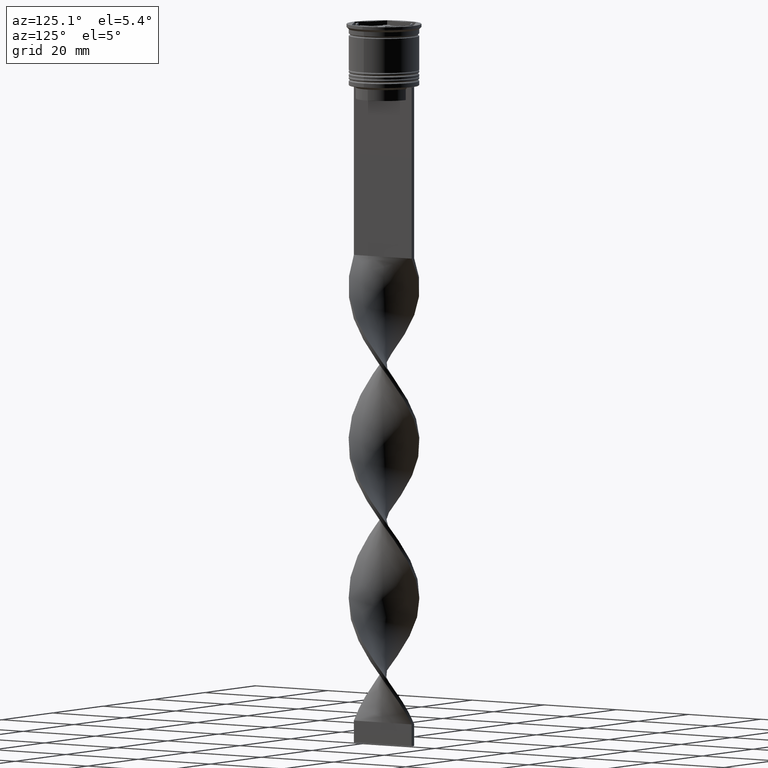
[diagram: clean part render]
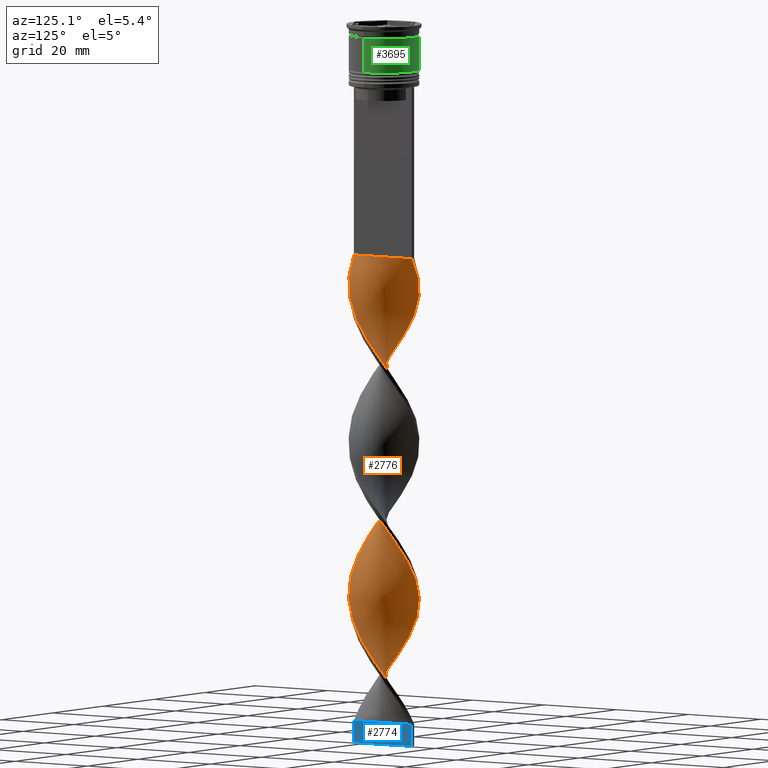
[diagram: same view with three faces highlighted in distinct colors, each labeled with its STEP entity id]
A machine part, auxiliary view with three faces highlighted in distinct colors.
Their STEP definitions:

[orange] entity #2776 — the highlighted face is a freeform B-spline surface patch.
#3 = CARTESIAN_POINT ( 'NONE',  ( 6.678203230275513214, 4.433012701892219631, -147.2222222222222285 ) ) ;
#8 = VECTOR ( 'NONE', #3688, 1000.000000000000000 ) ;
#16 = CARTESIAN_POINT ( 'NONE',  ( -0.5000000000000011102, -7.999999999999996447, -159.0000000000000000 ) ) ;
#20 = CARTESIAN_POINT ( 'NONE',  ( 8.008439394580017634, -0.3389667584570930092, -69.48888888888889426 ) ) ;
#25 = CARTESIAN_POINT ( 'NONE',  ( 2.797120415785104619, 7.511731982678710118, -83.62222222222222001 ) ) ;
#36 = CARTESIAN_POINT ( 'NONE',  ( -6.678203230275515878, -4.433012701892216079, -111.8888888888888999 ) ) ;
#52 = CARTESIAN_POINT ( 'NONE',  ( 5.610593300639729719, 5.724617263609562912, -78.91111111111111143 ) ) ;
#62 = CARTESIAN_POINT ( 'NONE',  ( 2.797120415785096625, -7.511731982678705677, -93.04444444444443718 ) ) ;
#72 = CARTESIAN_POINT ( 'NONE',  ( 2.797120415785104619, 7.511731982678710118, -83.62222222222222001 ) ) ;
#101 = CARTESIAN_POINT ( 'NONE',  ( 2.797120415785104619, 7.511731982678710118, -154.2888888888888914 ) ) ;
#104 = CARTESIAN_POINT ( 'NONE',  ( -7.178203230275506996, -3.566987298107776816, -76.55555555555555713 ) ) ;
#143 = CARTESIAN_POINT ( 'NONE',  ( -1.340833882125413545, -7.947447882367156602, -87.15555555555553724 ) ) ;
#152 = CARTESIAN_POINT ( 'NONE',  ( 7.178203230275512325, -3.566987298107783477, -135.4444444444444571 ) ) ;
#162 = CARTESIAN_POINT ( 'NONE',  ( 5.756150055891659179, 5.641498017056833625, -115.4222222222222456 ) ) ;
#168 = CARTESIAN_POINT ( 'NONE',  ( -3.710665873427702710, -7.104995339602902860, -83.62222222222222001 ) ) ;
#169 = CARTESIAN_POINT ( 'NONE',  ( 7.972812552651897811, -1.180687656695942112, -138.9777777777777885 ) ) ;
#178 = CARTESIAN_POINT ( 'NONE',  ( -2.963900771692543401, -7.495002038555964141, -155.4666666666666686 ) ) ;
#183 = CARTESIAN_POINT ( 'NONE',  ( 7.972812552651892481, 1.180687656695933230, -108.3555555555555543 ) ) ;
#192 = CARTESIAN_POINT ( 'NONE',  ( -4.457430975162862019, -6.714988640649840690, -153.1111111111110858 ) ) ;
#206 = CARTESIAN_POINT ( 'NONE',  ( 2.152367326908981138, 7.721224960461560372, -121.3111111111111171 ) ) ;
#215 = CARTESIAN_POINT ( 'NONE',  ( -2.152367326908979805, -7.721224960461560372, -156.6444444444444457 ) ) ;
#223 = CARTESIAN_POINT ( 'NONE',  ( 7.763755626116584985, -2.164223167868973619, -103.6444444444444457 ) ) ;
#232 = CARTESIAN_POINT ( 'NONE',  ( 8.044066236508134793, 0.5027541397817577584, -70.66666666666667140 ) ) ;
#239 = CARTESIAN_POINT ( 'NONE',  ( 2.797120415785096625, -7.511731982678705677, -93.04444444444443718 ) ) ;
#248 = CARTESIAN_POINT ( 'NONE',  ( -7.972812552651896922, 1.180687656695944776, -103.6444444444444457 ) ) ;
#272 = CARTESIAN_POINT ( 'NONE',  ( -2.797120415785108172, -7.511731982678708341, -118.9555555555555628 ) ) ;
#285 = CARTESIAN_POINT ( 'NONE',  ( -7.762960627548705084, 1.996607696852004565, -102.4666666666666686 ) ) ;
#288 = CARTESIAN_POINT ( 'NONE',  ( -5.610593300639730607, -5.724617263609562023, -114.2444444444444542 ) ) ;
#293 = CARTESIAN_POINT ( 'NONE',  ( -0.5000000000000011102, -7.999999999999996447, -159.0000000000000000 ) ) ;
#299 = CARTESIAN_POINT ( 'NONE',  ( 7.553108702445512357, -2.812527737008067241, -65.95555555555556282 ) ) ;
#302 = CARTESIAN_POINT ( 'NONE',  ( 7.144131640230924951, 3.731105258425341464, -146.0444444444443945 ) ) ;
#310 = CARTESIAN_POINT ( 'NONE',  ( -7.553108702445506140, -2.812527737008062356, -146.0444444444444230 ) ) ;
#318 = CARTESIAN_POINT ( 'NONE',  ( -7.763755626116593866, -2.164223167868965625, -108.3555555555555543 ) ) ;
#326 = CARTESIAN_POINT ( 'NONE',  ( 0.5000000000000001110, -8.000000000000003553, -123.6666666666666714 ) ) ;
#332 = CARTESIAN_POINT ( 'NONE',  ( -0.4999999999999997780, 2.666666666666670515, -159.0000000000000000 ) ) ;
#339 = CARTESIAN_POINT ( 'NONE',  ( -2.963900771692543845, 7.495002038555972135, -91.86666666666666003 ) ) ;
#349 = CARTESIAN_POINT ( 'NONE',  ( 8.044066236508127687, -0.5027541397817598678, -106.0000000000000000 ) ) ;
#356 = CARTESIAN_POINT ( 'NONE',  ( -5.610593300639721726, 5.724617263609561135, -62.42222222222221717 ) ) ;
#357 = CARTESIAN_POINT ( 'NONE',  ( 2.152367326908978473, -7.721224960461570141, -126.0222222222222257 ) ) ;
#391 = CARTESIAN_POINT ( 'NONE',  ( -5.008911780959349080, 6.314314381860025804, -61.24444444444443292 ) ) ;
#396 = CARTESIAN_POINT ( 'NONE',  ( -4.297773521152309151, 6.766028581145814513, -60.06666666666666288 ) ) ;
#405 = CARTESIAN_POINT ( 'NONE',  ( 7.144131640230915181, -3.731105258425345461, -101.2888888888888914 ) ) ;
#420 = CARTESIAN_POINT ( 'NONE',  ( -2.797120415785099734, 7.511731982678703901, -57.71111111111110858 ) ) ;
#427 = CARTESIAN_POINT ( 'NONE',  ( 5.106790515527261043, -6.178243328853345595, -130.7333333333333485 ) ) ;
#439 = CARTESIAN_POINT ( 'NONE',  ( -6.678203230275506108, 4.433012701892218743, -135.4444444444444571 ) ) ;
#443 = CARTESIAN_POINT ( 'NONE',  ( 6.678203230275505220, -4.433012701892221408, -100.1111111111111143 ) ) ;
#444 = CARTESIAN_POINT ( 'NONE',  ( 7.144131640230924951, 3.731105258425341464, -146.0444444444444230 ) ) ;
#453 = CARTESIAN_POINT ( 'NONE',  ( -8.008439394580010529, -0.3389667584570894565, -142.5111111111111200 ) ) ;
#461 = CARTESIAN_POINT ( 'NONE',  ( -7.178203230275506996, -3.566987298107776816, -76.55555555555555713 ) ) ;
#470 = CARTESIAN_POINT ( 'NONE',  ( -7.972812552651889817, -1.180687656695938337, -143.6888888888888971 ) ) ;
#477 = CARTESIAN_POINT ( 'NONE',  ( 2.007605570224929803, -7.805721184925809020, -91.86666666666666003 ) ) ;
#480 = EDGE_LOOP ( 'NONE', ( #558, #926, #2071, #2257 ) ) ;
#489 = CARTESIAN_POINT ( 'NONE',  ( 4.457430975162862907, 6.714988640649839802, -117.7777777777777999 ) ) ;
#501 = CARTESIAN_POINT ( 'NONE',  ( 6.212274820320095259, -5.134920145359096466, -98.93333333333332291 ) ) ;
#509 = CARTESIAN_POINT ( 'NONE',  ( -7.553108702445507028, -2.812527737008061912, -146.0444444444443945 ) ) ;
#515 = CARTESIAN_POINT ( 'NONE',  ( 6.279723906998583516, 4.981472438132163560, -114.2444444444444542 ) ) ;
#524 = CARTESIAN_POINT ( 'NONE',  ( 6.678203230275513214, 4.433012701892219631, -76.55555555555555713 ) ) ;
#530 = CARTESIAN_POINT ( 'NONE',  ( -7.178203230275506996, -3.566987298107776816, -147.2222222222222285 ) ) ;
#542 = CARTESIAN_POINT ( 'NONE',  ( -7.144131640230925839, -3.731105258425339244, -110.7111111111110944 ) ) ;
#558 = ORIENTED_EDGE ( 'NONE', *, *, #1310, .F. ) ;
#563 = CARTESIAN_POINT ( 'NONE',  ( -2.797120415785108172, -7.511731982678708341, -118.9555555555555628 ) ) ;
#569 = CARTESIAN_POINT ( 'NONE',  ( -1.174219726175176559, -7.929136651279327097, -121.3111111111111171 ) ) ;
#580 = CARTESIAN_POINT ( 'NONE',  ( 1.340833882125412213, -7.947447882367163707, -54.17777777777777715 ) ) ;
#586 = CARTESIAN_POINT ( 'NONE',  ( -5.008911780959359739, -6.314314381860026693, -115.4222222222222456 ) ) ;
#598 = CARTESIAN_POINT ( 'NONE',  ( -0.4999999999999991673, 8.000000000000003553, -88.33333333333332860 ) ) ;
#602 = CARTESIAN_POINT ( 'NONE',  ( -3.586635261345274994, -7.217742780431604110, -117.7777777777777999 ) ) ;
#619 = CARTESIAN_POINT ( 'NONE',  ( -0.3408338821254187634, -8.052552117632842510, -122.4888888888888800 ) ) ;
#626 = CARTESIAN_POINT ( 'NONE',  ( 1.174219726175175671, 7.929136651279327097, -156.6444444444444457 ) ) ;
#630 = CARTESIAN_POINT ( 'NONE',  ( 2.007605570224929803, -7.805721184925809020, -91.86666666666666003 ) ) ;
#641 = CARTESIAN_POINT ( 'NONE',  ( 1.340833882125412213, -7.947447882367163707, -124.8444444444444343 ) ) ;
#650 = CARTESIAN_POINT ( 'NONE',  ( 7.903910931312356780, -1.333488653825370518, -104.8222222222222229 ) ) ;
#667 = FACE_OUTER_BOUND ( 'NONE', #480, .T. ) ;
#689 = CARTESIAN_POINT ( 'NONE',  ( 6.678203230275505220, -4.433012701892221408, -100.1111111111111143 ) ) ;
#713 = CARTESIAN_POINT ( 'NONE',  ( 7.762960627548705084, -1.996607696852003677, -137.8000000000000114 ) ) ;
#719 = CARTESIAN_POINT ( 'NONE',  ( 7.762960627548699755, 1.996607696851999680, -109.5333333333333456 ) ) ;
#725 = CARTESIAN_POINT ( 'NONE',  ( -5.610593300639721726, 5.724617263609561135, -133.0888888888889028 ) ) ;
#739 = CARTESIAN_POINT ( 'NONE',  ( -6.212274820320096147, 5.134920145359095578, -134.2666666666666231 ) ) ;
#750 = CARTESIAN_POINT ( 'NONE',  ( 5.610593300639719949, -5.724617263609562912, -97.75555555555555998 ) ) ;
#759 = CARTESIAN_POINT ( 'NONE',  ( 7.178203230275508773, 3.566987298107773263, -111.8888888888888999 ) ) ;
#764 = LINE ( 'NONE', #1947, #8 ) ;
#765 = CARTESIAN_POINT ( 'NONE',  ( -6.212274820320096147, 5.134920145359095578, -134.2666666666666515 ) ) ;
#776 = CARTESIAN_POINT ( 'NONE',  ( 7.553108702445507916, 2.812527737008058804, -110.7111111111110944 ) ) ;
#780 = CARTESIAN_POINT ( 'NONE',  ( 0.5000000000000001110, 7.999999999999996447, -53.00000000000000000 ) ) ;
#782 = CARTESIAN_POINT ( 'NONE',  ( -0.5000000000000011102, -7.999999999999996447, -88.33333333333332860 ) ) ;
#792 = CARTESIAN_POINT ( 'NONE',  ( 8.008439394580017634, -0.3389667584570930092, -69.48888888888889426 ) ) ;
#805 = CARTESIAN_POINT ( 'NONE',  ( 7.762960627548699755, 1.996607696851999680, -109.5333333333333456 ) ) ;
#814 = CARTESIAN_POINT ( 'NONE',  ( -2.963900771692543845, 7.495002038555972135, -91.86666666666666003 ) ) ;
#831 = CARTESIAN_POINT ( 'NONE',  ( -2.007605570224935132, -7.805721184925815237, -120.1333333333333400 ) ) ;
#851 = CARTESIAN_POINT ( 'NONE',  ( 7.178203230275512325, -3.566987298107783477, -135.4444444444444571 ) ) ;
#870 = CARTESIAN_POINT ( 'NONE',  ( -6.279723906998584404, 4.981472438132172442, -97.75555555555555998 ) ) ;
#875 = CARTESIAN_POINT ( 'NONE',  ( 5.610593300639729719, 5.724617263609562912, -149.5777777777777828 ) ) ;
#886 = CARTESIAN_POINT ( 'NONE',  ( 7.763755626116592090, 2.164223167868970066, -73.02222222222221149 ) ) ;
#892 = CARTESIAN_POINT ( 'NONE',  ( -7.763755626116593866, -2.164223167868965625, -108.3555555555555543 ) ) ;
#899 = CARTESIAN_POINT ( 'NONE',  ( -6.803297758105507853, -4.321446859207493496, -148.4000000000000057 ) ) ;
#904 = CARTESIAN_POINT ( 'NONE',  ( -3.586635261345274994, -7.217742780431604110, -117.7777777777777857 ) ) ;
#922 = CARTESIAN_POINT ( 'NONE',  ( -2.007605570224930691, 7.805721184925808132, -56.53333333333332433 ) ) ;
#923 = CARTESIAN_POINT ( 'NONE',  ( 4.457430975162862907, -6.714988640649847795, -58.88888888888888573 ) ) ;
#926 = ORIENTED_EDGE ( 'NONE', *, *, #1962, .T. ) ;
#930 = CARTESIAN_POINT ( 'NONE',  ( 4.297773521152314480, 6.766028581145818066, -151.9333333333333371 ) ) ;
#933 = CARTESIAN_POINT ( 'NONE',  ( 0.5000000000000001110, 7.999999999999996447, -53.00000000000000000 ) ) ;
#942 = CARTESIAN_POINT ( 'NONE',  ( 3.586635261345274106, 7.217742780431604999, -153.1111111111111143 ) ) ;
#951 = CARTESIAN_POINT ( 'NONE',  ( -7.453943633173751415, 2.947664213147155543, -67.13333333333333997 ) ) ;
#974 = CARTESIAN_POINT ( 'NONE',  ( 4.297773521152308263, -6.766028581145814513, -95.40000000000000568 ) ) ;
#1011 = CARTESIAN_POINT ( 'NONE',  ( 7.763755626116592090, 2.164223167868970066, -73.02222222222219727 ) ) ;
#1015 = CARTESIAN_POINT ( 'NONE',  ( -7.972812552651890705, -1.180687656695938115, -73.02222222222221149 ) ) ;
#1024 = CARTESIAN_POINT ( 'NONE',  ( 0.5000000000000001110, 7.999999999999996447, -123.6666666666666714 ) ) ;
#1033 = CARTESIAN_POINT ( 'NONE',  ( 3.586635261345266557, -7.217742780431602334, -94.22222222222221433 ) ) ;
#1045 = CARTESIAN_POINT ( 'NONE',  ( 4.457430975162862907, -6.714988640649848683, -58.88888888888889284 ) ) ;
#1052 = CARTESIAN_POINT ( 'NONE',  ( 1.340833882125418208, 7.947447882367156602, -122.4888888888888800 ) ) ;
#1061 = CARTESIAN_POINT ( 'NONE',  ( 2.963900771692544289, -7.495002038555971247, -56.53333333333331723 ) ) ;
#1067 = CARTESIAN_POINT ( 'NONE',  ( -7.453943633173751415, 2.947664213147155543, -137.8000000000000114 ) ) ;
#1076 = CARTESIAN_POINT ( 'NONE',  ( 7.553108702445513245, -2.812527737008067685, -65.95555555555556282 ) ) ;
#1082 = CARTESIAN_POINT ( 'NONE',  ( -5.008911780959349080, 6.314314381860025804, -131.9111111111111256 ) ) ;
#1094 = CARTESIAN_POINT ( 'NONE',  ( 4.457430975162862907, -6.714988640649848683, -129.5555555555555429 ) ) ;
#1114 = CARTESIAN_POINT ( 'NONE',  ( -7.903910931312363886, -1.333488653825361192, -107.1777777777777771 ) ) ;
#1131 =( BOUNDED_CURVE ( )  B_SPLINE_CURVE ( 2, ( #1843, #1300, #2458, #922, #3003, #2086, #396, #3253, #356, #1551, #3619, #3074, #3109, #1636, #1619, #2526, #2823, #1015, #1603, #1657, #461, #1968, #1915, #3635, #3657, #1331, #168, #3090, #1931, #3131, #782, #2783, #2173, #477, #239, #1033, #2246, #2803, #750, #501, #443, #1316, #3396, #223, #1369, #2765, #3415, #183, #805, #1673, #2840, #2494, #515, #3689, #1895, #1386, #1354, #2474, #206, #1052, #3672, #1948, #3379, #2190, #2213, #3364, #3340, #1082, #725, #765, #3057, #2512, #1067, #2228, #2270, #2566, #2624, #1732, #2597, #310, #530, #899, #2039, #2900, #2004, #3710, #3146, #2024, #3451, #2057, #3469 ),
 .UNSPECIFIED., .F., .T. ) 
 B_SPLINE_CURVE_WITH_KNOTS ( ( 3, 2, 2, 2, 2, 2, 2, 2, 2, 2, 2, 2, 2, 2, 2, 2, 2, 2, 2, 2, 2, 2, 2, 2, 2, 2, 2, 2, 2, 2, 2, 2, 2, 2, 2, 2, 2, 2, 2, 2, 2, 2, 2, 2, 2, 3 ),
 ( 0.000000000000000000, 0.01666666666666666644, 0.03333333333333333287, 0.05000000000000000971, 0.06666666666666666574, 0.08333333333333332871, 0.1000000000000000194, 0.1166666666666666546, 0.1333333333333333315, 0.1499999999999999944, 0.1666666666666666574, 0.1833333333333333204, 0.2000000000000000389, 0.2166666666666666741, 0.2333333333333333093, 0.2500000000000000000, 0.2666666666666666630, 0.2833333333333333259, 0.2999999999999999889, 0.3166666666666666519, 0.3333333333333333148, 0.3499999999999999223, 0.3666666666666666408, 0.3833333333333333592, 0.4000000000000000777, 0.4166666666666666852, 0.4333333333333333481, 0.4500000000000000111, 0.4666666666666666186, 0.4833333333333333370, 0.5000000000000000000, 0.5166666666666667185, 0.5333333333333333259, 0.5500000000000000444, 0.5666666666666666519, 0.5833333333333333703, 0.5999999999999999778, 0.6166666666666666963, 0.6333333333333333037, 0.6500000000000000222, 0.6666666666666666297, 0.6833333333333332371, 0.6999999999999998446, 0.7166666666666666741, 0.7333333333333332815, 0.7500000000000000000 ),
 .UNSPECIFIED. ) 
 CURVE ( )  GEOMETRIC_REPRESENTATION_ITEM ( )  RATIONAL_B_SPLINE_CURVE ( ( 1.000000000000000000, 0.9945218953682732899, 1.000000000000000000, 0.9945218953682732899, 1.000000000000000000, 0.9945218953682732899, 1.000000000000000000, 0.9945218953682732899, 1.000000000000000000, 0.9945218953682732899, 1.000000000000000000, 0.9945218953682732899, 1.000000000000000000, 0.9945218953682732899, 1.000000000000000000, 0.9945218953682732899, 1.000000000000000000, 0.9945218953682732899, 1.000000000000000000, 0.9945218953682732899, 1.000000000000000000, 0.9945218953682732899, 1.000000000000000000, 0.9945218953682732899, 1.000000000000000000, 0.9945218953682732899, 1.000000000000000000, 0.9945218953682732899, 1.000000000000000000, 0.9945218953682732899, 1.000000000000000000, 0.9945218953682732899, 1.000000000000000000, 0.9945218953682732899, 1.000000000000000000, 0.9945218953682732899, 1.000000000000000000, 0.9945218953682732899, 1.000000000000000000, 0.9945218953682732899, 1.000000000000000000, 0.9945218953682732899, 1.000000000000000000, 0.9945218953682732899, 1.000000000000000000, 0.9945218953682732899, 1.000000000000000000, 0.9945218953682732899, 1.000000000000000000, 0.9945218953682732899, 1.000000000000000000, 0.9945218953682732899, 1.000000000000000000, 0.9945218953682732899, 1.000000000000000000, 0.9945218953682732899, 1.000000000000000000, 0.9945218953682732899, 1.000000000000000000, 0.9945218953682732899, 1.000000000000000000, 0.9945218953682732899, 1.000000000000000000, 0.9945218953682732899, 1.000000000000000000, 0.9945218953682732899, 1.000000000000000000, 0.9945218953682732899, 1.000000000000000000, 0.9945218953682732899, 1.000000000000000000, 0.9945218953682732899, 1.000000000000000000, 0.9945218953682732899, 1.000000000000000000, 0.9945218953682732899, 1.000000000000000000, 0.9945218953682732899, 1.000000000000000000, 0.9945218953682732899, 1.000000000000000000, 0.9945218953682732899, 1.000000000000000000, 0.9945218953682732899, 1.000000000000000000, 0.9945218953682732899, 1.000000000000000000, 0.9945218953682732899, 1.000000000000000000, 0.9945218953682732899, 1.000000000000000000 ) ) 
 REPRESENTATION_ITEM ( '' )  );
#1133 = CARTESIAN_POINT ( 'NONE',  ( -6.803297758105511406, 4.321446859207499713, -98.93333333333332291 ) ) ;
#1147 = CARTESIAN_POINT ( 'NONE',  ( -4.297773521152315368, -6.766028581145818066, -116.6000000000000085 ) ) ;
#1152 = CARTESIAN_POINT ( 'NONE',  ( 2.007605570224934244, 7.805721184925815237, -84.79999999999998295 ) ) ;
#1170 = CARTESIAN_POINT ( 'NONE',  ( 5.008911780959356186, 6.314314381860030245, -80.08888888888888857 ) ) ;
#1173 = CARTESIAN_POINT ( 'NONE',  ( -3.710665873427700934, 7.104995339602911741, -93.04444444444443718 ) ) ;
#1186 = CARTESIAN_POINT ( 'NONE',  ( -6.212274820320102364, -5.134920145359098242, -113.0666666666666629 ) ) ;
#1202 = CARTESIAN_POINT ( 'NONE',  ( -3.710665873427700934, 7.104995339602911741, -93.04444444444443718 ) ) ;
#1226 = CARTESIAN_POINT ( 'NONE',  ( 3.586635261345274106, 7.217742780431604999, -82.44444444444444287 ) ) ;
#1238 = CARTESIAN_POINT ( 'NONE',  ( -7.762960627548699755, -1.996607696852000569, -74.20000000000000284 ) ) ;
#1248 = CARTESIAN_POINT ( 'NONE',  ( 6.678203230275513214, 4.433012701892219631, -147.2222222222222285 ) ) ;
#1255 = CARTESIAN_POINT ( 'NONE',  ( 0.3408338821254142115, 8.052552117632842510, -157.8222222222221660 ) ) ;
#1258 = CARTESIAN_POINT ( 'NONE',  ( -5.106790515527258378, -6.178243328853339378, -81.26666666666666572 ) ) ;
#1284 = CARTESIAN_POINT ( 'NONE',  ( 2.007605570224934244, 7.805721184925815237, -155.4666666666666686 ) ) ;
#1296 = CARTESIAN_POINT ( 'NONE',  ( 5.008911780959347304, -6.314314381860026693, -96.57777777777775441 ) ) ;
#1300 = CARTESIAN_POINT ( 'NONE',  ( -0.3408338821254111584, 8.052552117632835404, -54.17777777777777715 ) ) ;
#1301 = CARTESIAN_POINT ( 'NONE',  ( 5.610593300639729719, 5.724617263609562912, -149.5777777777777828 ) ) ;
#1309 = CARTESIAN_POINT ( 'NONE',  ( 5.106790515527259267, 6.178243328853339378, -116.6000000000000085 ) ) ;
#1310 = EDGE_CURVE ( 'NONE', #1492, #2410, #764, .T. ) ;
#1316 = CARTESIAN_POINT ( 'NONE',  ( 7.144131640230915181, -3.731105258425345461, -101.2888888888888914 ) ) ;
#1317 = CARTESIAN_POINT ( 'NONE',  ( 7.903910931312363886, 1.333488653825363857, -142.5111111111111200 ) ) ;
#1322 = VERTEX_POINT ( 'NONE', #1635 ) ;
#1324 = CARTESIAN_POINT ( 'NONE',  ( 0.5000000000000001110, -8.000000000000003553, -53.00000000000000000 ) ) ;
#1331 = CARTESIAN_POINT ( 'NONE',  ( -4.457430975162862019, -6.714988640649840690, -82.44444444444444287 ) ) ;
#1345 = CARTESIAN_POINT ( 'NONE',  ( 6.279723906998584404, -4.981472438132170666, -62.42222222222221717 ) ) ;
#1354 = CARTESIAN_POINT ( 'NONE',  ( 3.710665873427706707, 7.104995339602901083, -118.9555555555555628 ) ) ;
#1363 = CARTESIAN_POINT ( 'NONE',  ( -0.5000000000000011102, -7.999999999999996447, -159.0000000000000000 ) ) ;
#1369 = CARTESIAN_POINT ( 'NONE',  ( 7.903910931312356780, -1.333488653825370518, -104.8222222222222229 ) ) ;
#1372 = EDGE_CURVE ( 'NONE', #3071, #1322, #1405, .T. ) ;
#1379 = CARTESIAN_POINT ( 'NONE',  ( -2.797120415785099734, 7.511731982678703901, -128.3777777777777942 ) ) ;
#1386 = CARTESIAN_POINT ( 'NONE',  ( 4.457430975162862907, 6.714988640649839802, -117.7777777777777857 ) ) ;
#1399 = CARTESIAN_POINT ( 'NONE',  ( -8.008439394580017634, 0.3389667584570975056, -104.8222222222222229 ) ) ;
#1405 = B_SPLINE_CURVE_WITH_KNOTS ( 'NONE', 3,
 ( #293, #1715, #332, #1731 ),
 .UNSPECIFIED., .F., .F.,
 ( 4, 4 ),
 ( 0.000000000000000000, 1.000000000000000000 ),
 .UNSPECIFIED. ) ;
#1422 = CARTESIAN_POINT ( 'NONE',  ( -0.4999999999999991673, 8.000000000000003553, -88.33333333333332860 ) ) ;
#1437 = CARTESIAN_POINT ( 'NONE',  ( 3.710665873427703154, -7.104995339602909965, -128.3777777777777942 ) ) ;
#1440 = CARTESIAN_POINT ( 'NONE',  ( 2.152367326908978473, -7.721224960461570141, -126.0222222222222257 ) ) ;
#1452 = CARTESIAN_POINT ( 'NONE',  ( -4.457430975162861131, 6.714988640649849572, -94.22222222222221433 ) ) ;
#1457 = CARTESIAN_POINT ( 'NONE',  ( 1.174219726175175671, 7.929136651279327097, -85.97777777777777430 ) ) ;
#1474 = CARTESIAN_POINT ( 'NONE',  ( -7.453943633173759409, -2.947664213147155543, -109.5333333333333456 ) ) ;
#1479 = CARTESIAN_POINT ( 'NONE',  ( -4.457430975162861131, 6.714988640649850460, -94.22222222222221433 ) ) ;
#1488 = CARTESIAN_POINT ( 'NONE',  ( 7.903910931312363886, 1.333488653825363857, -71.84444444444444855 ) ) ;
#1492 = VERTEX_POINT ( 'NONE', #2621 ) ;
#1498 = CARTESIAN_POINT ( 'NONE',  ( 8.008439394580010529, 0.3389667584570867365, -107.1777777777777771 ) ) ;
#1505 = CARTESIAN_POINT ( 'NONE',  ( 6.279723906998584404, -4.981472438132170666, -62.42222222222221717 ) ) ;
#1531 = CARTESIAN_POINT ( 'NONE',  ( 2.797120415785104619, 7.511731982678710118, -154.2888888888888914 ) ) ;
#1542 = CARTESIAN_POINT ( 'NONE',  ( -7.903910931312356780, 1.333488653825365855, -69.48888888888889426 ) ) ;
#1551 = CARTESIAN_POINT ( 'NONE',  ( -6.212274820320096147, 5.134920145359095578, -63.60000000000000142 ) ) ;
#1578 = CARTESIAN_POINT ( 'NONE',  ( -5.610593300639721726, 5.724617263609561135, -62.42222222222221717 ) ) ;
#1587 = CARTESIAN_POINT ( 'NONE',  ( 5.756150055891658290, -5.641498017056844283, -131.9111111111111256 ) ) ;
#1599 = CARTESIAN_POINT ( 'NONE',  ( -4.297773521152309151, 6.766028581145814513, -130.7333333333333485 ) ) ;
#1603 = CARTESIAN_POINT ( 'NONE',  ( -7.762960627548699755, -1.996607696852000569, -74.20000000000000284 ) ) ;
#1604 = CARTESIAN_POINT ( 'NONE',  ( 8.008439394580017634, -0.3389667584570930092, -140.1555555555555657 ) ) ;
#1613 = CARTESIAN_POINT ( 'NONE',  ( -5.756150055891655626, -5.641498017056837178, -150.7555555555555600 ) ) ;
#1619 = CARTESIAN_POINT ( 'NONE',  ( -7.903910931312356780, 1.333488653825365855, -69.48888888888889426 ) ) ;
#1628 = CARTESIAN_POINT ( 'NONE',  ( 5.756150055891659179, -5.641498017056845171, -61.24444444444443292 ) ) ;
#1635 = CARTESIAN_POINT ( 'NONE',  ( -0.4999999999999991673, 8.000000000000003553, -159.0000000000000000 ) ) ;
#1636 = CARTESIAN_POINT ( 'NONE',  ( -7.763755626116584985, 2.164223167868970954, -68.31111111111111711 ) ) ;
#1648 = CARTESIAN_POINT ( 'NONE',  ( -7.903910931312356780, 1.333488653825365855, -140.1555555555555657 ) ) ;
#1657 = CARTESIAN_POINT ( 'NONE',  ( -7.553108702445506140, -2.812527737008062356, -75.37777777777777999 ) ) ;
#1666 = CARTESIAN_POINT ( 'NONE',  ( -7.144131640230917846, 3.731105258425341020, -136.6222222222222342 ) ) ;
#1673 = CARTESIAN_POINT ( 'NONE',  ( 7.553108702445507028, 2.812527737008059248, -110.7111111111111086 ) ) ;
#1682 = CARTESIAN_POINT ( 'NONE',  ( 0.3408338821254142115, 8.052552117632842510, -87.15555555555553724 ) ) ;
#1707 = CARTESIAN_POINT ( 'NONE',  ( -6.212274820320102364, -5.134920145359098242, -113.0666666666666487 ) ) ;
#1715 = CARTESIAN_POINT ( 'NONE',  ( -0.5000000000000004441, -2.666666666666663410, -159.0000000000000000 ) ) ;
#1722 = CARTESIAN_POINT ( 'NONE',  ( 2.963900771692544289, -7.495002038555971247, -127.2000000000000028 ) ) ;
#1725 = CARTESIAN_POINT ( 'NONE',  ( 5.610593300639729719, 5.724617263609562912, -78.91111111111111143 ) ) ;
#1731 = CARTESIAN_POINT ( 'NONE',  ( -0.4999999999999991673, 8.000000000000003553, -159.0000000000000000 ) ) ;
#1732 = CARTESIAN_POINT ( 'NONE',  ( -7.972812552651890705, -1.180687656695938115, -143.6888888888888971 ) ) ;
#1738 = CARTESIAN_POINT ( 'NONE',  ( -7.178203230275511437, 3.566987298107786142, -100.1111111111111143 ) ) ;
#1742 = CARTESIAN_POINT ( 'NONE',  ( 6.803297758105512294, -4.321446859207498825, -134.2666666666666231 ) ) ;
#1757 = CARTESIAN_POINT ( 'NONE',  ( -5.756150055891657402, 5.641498017056845171, -96.57777777777776862 ) ) ;
#1761 = CARTESIAN_POINT ( 'NONE',  ( -0.3408338821254187079, -8.052552117632842510, -122.4888888888888800 ) ) ;
#1782 = CARTESIAN_POINT ( 'NONE',  ( 4.297773521152314480, 6.766028581145818066, -81.26666666666666572 ) ) ;
#1802 = CARTESIAN_POINT ( 'NONE',  ( 7.178203230275512325, -3.566987298107783477, -64.77777777777778567 ) ) ;
#1843 = CARTESIAN_POINT ( 'NONE',  ( 0.5000000000000001110, 7.999999999999996447, -53.00000000000000000 ) ) ;
#1871 = CARTESIAN_POINT ( 'NONE',  ( -5.756150055891655626, -5.641498017056837178, -80.08888888888890278 ) ) ;
#1879 = CARTESIAN_POINT ( 'NONE',  ( 5.008911780959356186, 6.314314381860030245, -150.7555555555555600 ) ) ;
#1886 = CARTESIAN_POINT ( 'NONE',  ( 6.279723906998583516, 4.981472438132163560, -114.2444444444444542 ) ) ;
#1895 = CARTESIAN_POINT ( 'NONE',  ( 5.106790515527259267, 6.178243328853339378, -116.6000000000000085 ) ) ;
#1896 = CARTESIAN_POINT ( 'NONE',  ( 1.174219726175175671, 7.929136651279327097, -156.6444444444444457 ) ) ;
#1908 = CARTESIAN_POINT ( 'NONE',  ( -7.763755626116584097, 2.164223167868971398, -138.9777777777777885 ) ) ;
#1915 = CARTESIAN_POINT ( 'NONE',  ( -6.279723906998582628, -4.981472438132164449, -78.91111111111111143 ) ) ;
#1924 = CARTESIAN_POINT ( 'NONE',  ( -6.279723906998582628, -4.981472438132164449, -149.5777777777777828 ) ) ;
#1931 = CARTESIAN_POINT ( 'NONE',  ( -2.152367326908979805, -7.721224960461560372, -85.97777777777777430 ) ) ;
#1940 = CARTESIAN_POINT ( 'NONE',  ( -5.610593300639721726, 5.724617263609561135, -133.0888888888889028 ) ) ;
#1947 = CARTESIAN_POINT ( 'NONE',  ( 0.5000000000000001110, -8.000000000000003553, -53.00000000000000000 ) ) ;
#1948 = CARTESIAN_POINT ( 'NONE',  ( -0.3408338821254111584, 8.052552117632835404, -124.8444444444444343 ) ) ;
#1960 = CARTESIAN_POINT ( 'NONE',  ( 2.963900771692544289, 7.495002038555964141, -120.1333333333333400 ) ) ;
#1962 = EDGE_CURVE ( 'NONE', #1492, #1322, #2588, .T. ) ;
#1968 = CARTESIAN_POINT ( 'NONE',  ( -6.803297758105507853, -4.321446859207493496, -77.73333333333333428 ) ) ;
#1977 = CARTESIAN_POINT ( 'NONE',  ( -1.340833882125409104, 7.947447882367164596, -89.51111111111111995 ) ) ;
#1995 = CARTESIAN_POINT ( 'NONE',  ( -7.453943633173759409, -2.947664213147155543, -109.5333333333333456 ) ) ;
#2004 = CARTESIAN_POINT ( 'NONE',  ( -5.106790515527258378, -6.178243328853339378, -151.9333333333333371 ) ) ;
#2013 = CARTESIAN_POINT ( 'NONE',  ( -1.340833882125409104, 7.947447882367165484, -89.51111111111110574 ) ) ;
#2018 = CARTESIAN_POINT ( 'NONE',  ( 8.008439394580017634, -0.3389667584570930092, -140.1555555555555657 ) ) ;
#2024 = CARTESIAN_POINT ( 'NONE',  ( -2.963900771692543401, -7.495002038555965029, -155.4666666666666686 ) ) ;
#2029 = CARTESIAN_POINT ( 'NONE',  ( 2.963900771692544289, -7.495002038555971247, -56.53333333333332433 ) ) ;
#2033 = CARTESIAN_POINT ( 'NONE',  ( 5.008911780959355298, 6.314314381860029357, -150.7555555555555600 ) ) ;
#2039 = CARTESIAN_POINT ( 'NONE',  ( -6.279723906998582628, -4.981472438132164449, -149.5777777777777828 ) ) ;
#2045 = CARTESIAN_POINT ( 'NONE',  ( 2.152367326908978473, -7.721224960461570141, -55.35555555555555429 ) ) ;
#2049 = CARTESIAN_POINT ( 'NONE',  ( 7.553108702445513245, -2.812527737008067685, -136.6222222222222342 ) ) ;
#2057 = CARTESIAN_POINT ( 'NONE',  ( -1.340833882125413545, -7.947447882367156602, -157.8222222222221944 ) ) ;
#2062 = CARTESIAN_POINT ( 'NONE',  ( -2.007605570224935132, -7.805721184925815237, -120.1333333333333400 ) ) ;
#2071 = ORIENTED_EDGE ( 'NONE', *, *, #1372, .F. ) ;
#2075 = CARTESIAN_POINT ( 'NONE',  ( 7.763755626116584097, -2.164223167868973619, -103.6444444444444457 ) ) ;
#2086 = CARTESIAN_POINT ( 'NONE',  ( -3.586635261345268333, 7.217742780431601446, -58.88888888888888573 ) ) ;
#2087 = CARTESIAN_POINT ( 'NONE',  ( -5.008911780959359739, -6.314314381860026693, -115.4222222222222314 ) ) ;
#2091 = CARTESIAN_POINT ( 'NONE',  ( -0.4999999999999991673, 8.000000000000003553, -159.0000000000000000 ) ) ;
#2094 = CARTESIAN_POINT ( 'NONE',  ( -6.678203230275506108, 4.433012701892218743, -64.77777777777778567 ) ) ;
#2103 = CARTESIAN_POINT ( 'NONE',  ( -0.4999999999999991673, 8.000000000000003553, -159.0000000000000000 ) ) ;
#2113 = CARTESIAN_POINT ( 'NONE',  ( -7.144131640230917846, 3.731105258425341020, -65.95555555555556282 ) ) ;
#2132 = CARTESIAN_POINT ( 'NONE',  ( 5.610593300639719949, -5.724617263609562912, -97.75555555555555998 ) ) ;
#2152 = CARTESIAN_POINT ( 'NONE',  ( -2.152367326908979805, -7.721224960461560372, -85.97777777777777430 ) ) ;
#2159 = CARTESIAN_POINT ( 'NONE',  ( 8.044066236508134793, 0.5027541397817577584, -141.3333333333333428 ) ) ;
#2166 = CARTESIAN_POINT ( 'NONE',  ( 7.453943633173759409, 2.947664213147156431, -74.20000000000000284 ) ) ;
#2173 = CARTESIAN_POINT ( 'NONE',  ( 1.174219726175168788, -7.929136651279321768, -90.68888888888888289 ) ) ;
#2180 = CARTESIAN_POINT ( 'NONE',  ( -2.007605570224930691, 7.805721184925808132, -127.2000000000000171 ) ) ;
#2190 = CARTESIAN_POINT ( 'NONE',  ( -2.007605570224930691, 7.805721184925808132, -127.2000000000000028 ) ) ;
#2204 = CARTESIAN_POINT ( 'NONE',  ( -7.453943633173751415, 2.947664213147155543, -137.8000000000000114 ) ) ;
#2213 = CARTESIAN_POINT ( 'NONE',  ( -2.797120415785099734, 7.511731982678703901, -128.3777777777777942 ) ) ;
#2222 = CARTESIAN_POINT ( 'NONE',  ( 1.340833882125418208, 7.947447882367156602, -122.4888888888888800 ) ) ;
#2228 = CARTESIAN_POINT ( 'NONE',  ( -7.763755626116584985, 2.164223167868970954, -138.9777777777777885 ) ) ;
#2238 = CARTESIAN_POINT ( 'NONE',  ( 7.762960627548705084, -1.996607696852003677, -67.13333333333333997 ) ) ;
#2246 = CARTESIAN_POINT ( 'NONE',  ( 4.297773521152308263, -6.766028581145814513, -95.40000000000000568 ) ) ;
#2257 = ORIENTED_EDGE ( 'NONE', *, *, #3675, .F. ) ;
#2261 = CARTESIAN_POINT ( 'NONE',  ( 8.044066236508134793, 0.5027541397817577584, -141.3333333333333428 ) ) ;
#2270 = CARTESIAN_POINT ( 'NONE',  ( -7.903910931312356780, 1.333488653825365855, -140.1555555555555657 ) ) ;
#2278 = CARTESIAN_POINT ( 'NONE',  ( -6.279723906998584404, 4.981472438132172442, -97.75555555555555998 ) ) ;
#2297 = CARTESIAN_POINT ( 'NONE',  ( -4.297773521152315368, -6.766028581145818066, -116.6000000000000085 ) ) ;
#2312 = CARTESIAN_POINT ( 'NONE',  ( 6.803297758105513182, -4.321446859207498825, -63.60000000000000142 ) ) ;
#2317 = CARTESIAN_POINT ( 'NONE',  ( 6.212274820320101476, 5.134920145359098242, -148.4000000000000057 ) ) ;
#2327 = CARTESIAN_POINT ( 'NONE',  ( 7.144131640230924951, 3.731105258425341464, -75.37777777777777999 ) ) ;
#2335 = CARTESIAN_POINT ( 'NONE',  ( 5.008911780959355298, 6.314314381860029357, -80.08888888888890278 ) ) ;
#2348 = CARTESIAN_POINT ( 'NONE',  ( 8.044066236508134793, 0.5027541397817577584, -70.66666666666667140 ) ) ;
#2366 = CARTESIAN_POINT ( 'NONE',  ( -5.106790515527260155, 6.178243328853345595, -95.40000000000000568 ) ) ;
#2381 = CARTESIAN_POINT ( 'NONE',  ( -7.763755626116584097, 2.164223167868971398, -68.31111111111111711 ) ) ;
#2392 = CARTESIAN_POINT ( 'NONE',  ( 1.174219726175175671, 7.929136651279327097, -85.97777777777777430 ) ) ;
#2400 = CARTESIAN_POINT ( 'NONE',  ( -2.007605570224930691, 7.805721184925808132, -56.53333333333331723 ) ) ;
#2410 = VERTEX_POINT ( 'NONE', #780 ) ;
#2418 = CARTESIAN_POINT ( 'NONE',  ( 0.3408338821254078277, -8.052552117632837181, -89.51111111111111995 ) ) ;
#2432 = CARTESIAN_POINT ( 'NONE',  ( -3.586635261345267889, 7.217742780431601446, -58.88888888888889284 ) ) ;
#2453 = CARTESIAN_POINT ( 'NONE',  ( -6.803297758105507853, -4.321446859207493496, -77.73333333333333428 ) ) ;
#2458 = CARTESIAN_POINT ( 'NONE',  ( -1.174219726175170786, 7.929136651279321768, -55.35555555555555429 ) ) ;
#2459 = CARTESIAN_POINT ( 'NONE',  ( 0.3408338821254142115, 8.052552117632842510, -157.8222222222221944 ) ) ;
#2467 = CARTESIAN_POINT ( 'NONE',  ( 2.152367326908981138, 7.721224960461560372, -121.3111111111111171 ) ) ;
#2474 = CARTESIAN_POINT ( 'NONE',  ( 2.963900771692544289, 7.495002038555965029, -120.1333333333333400 ) ) ;
#2475 = CARTESIAN_POINT ( 'NONE',  ( 7.763755626116592090, 2.164223167868970066, -143.6888888888888971 ) ) ;
#2484 = CARTESIAN_POINT ( 'NONE',  ( -6.803297758105507853, -4.321446859207493496, -148.4000000000000057 ) ) ;
#2494 = CARTESIAN_POINT ( 'NONE',  ( 6.803297758105508741, 4.321446859207492608, -113.0666666666666629 ) ) ;
#2505 = CARTESIAN_POINT ( 'NONE',  ( 6.803297758105512294, -4.321446859207498825, -63.60000000000000853 ) ) ;
#2512 = CARTESIAN_POINT ( 'NONE',  ( -7.144131640230917846, 3.731105258425341020, -136.6222222222222342 ) ) ;
#2521 = CARTESIAN_POINT ( 'NONE',  ( -3.710665873427702710, -7.104995339602902860, -154.2888888888888914 ) ) ;
#2526 = CARTESIAN_POINT ( 'NONE',  ( -8.044066236508127687, 0.5027541397817588686, -70.66666666666667140 ) ) ;
#2538 = CARTESIAN_POINT ( 'NONE',  ( 7.903910931312363886, 1.333488653825363857, -71.84444444444444855 ) ) ;
#2558 = CARTESIAN_POINT ( 'NONE',  ( -5.106790515527260155, 6.178243328853345595, -95.40000000000000568 ) ) ;
#2566 = CARTESIAN_POINT ( 'NONE',  ( -8.044066236508127687, 0.5027541397817588686, -141.3333333333333428 ) ) ;
#2575 = CARTESIAN_POINT ( 'NONE',  ( -7.553108702445510581, 2.812527737008071682, -101.2888888888888914 ) ) ;
#2587 = CARTESIAN_POINT ( 'NONE',  ( 5.756150055891658290, -5.641498017056844283, -61.24444444444443292 ) ) ;
#2588 =( BOUNDED_CURVE ( )  B_SPLINE_CURVE ( 2, ( #2787, #580, #2045, #2029, #3494, #923, #3754, #2587, #1505, #2312, #1802, #299, #2606, #3195, #20, #2348, #1488, #886, #2665, #2327, #2905, #2647, #52, #1170, #1782, #1226, #72, #3233, #2392, #3553, #598, #2013, #3478, #339, #1202, #1452, #2366, #1757, #870, #3214, #1738, #2921, #285, #3529, #2889, #3254, #3176, #318, #1474, #2631, #36, #1186, #3510, #2087, #1147, #904, #563, #2062, #2961, #619, #2946, #641, #357, #1722, #1437, #3036, #427, #1587, #2766, #2746, #152, #2709, #713, #169, #1604, #2159, #1317, #2475, #3313, #444, #1248, #3341, #1301, #1879, #3288, #942, #1531, #1284, #1896, #2459, #2103 ),
 .UNSPECIFIED., .F., .T. ) 
 B_SPLINE_CURVE_WITH_KNOTS ( ( 3, 2, 2, 2, 2, 2, 2, 2, 2, 2, 2, 2, 2, 2, 2, 2, 2, 2, 2, 2, 2, 2, 2, 2, 2, 2, 2, 2, 2, 2, 2, 2, 2, 2, 2, 2, 2, 2, 2, 2, 2, 2, 2, 2, 2, 3 ),
 ( 0.000000000000000000, 0.01666666666666666644, 0.03333333333333333287, 0.05000000000000000971, 0.06666666666666666574, 0.08333333333333332871, 0.1000000000000000194, 0.1166666666666666546, 0.1333333333333333315, 0.1499999999999999944, 0.1666666666666666574, 0.1833333333333333204, 0.2000000000000000389, 0.2166666666666666741, 0.2333333333333333093, 0.2500000000000000000, 0.2666666666666666630, 0.2833333333333333259, 0.2999999999999999889, 0.3166666666666666519, 0.3333333333333333148, 0.3499999999999999223, 0.3666666666666666408, 0.3833333333333333592, 0.4000000000000000777, 0.4166666666666666852, 0.4333333333333333481, 0.4500000000000000111, 0.4666666666666666186, 0.4833333333333333370, 0.5000000000000000000, 0.5166666666666667185, 0.5333333333333333259, 0.5500000000000000444, 0.5666666666666666519, 0.5833333333333333703, 0.5999999999999999778, 0.6166666666666666963, 0.6333333333333333037, 0.6500000000000000222, 0.6666666666666666297, 0.6833333333333332371, 0.6999999999999998446, 0.7166666666666666741, 0.7333333333333332815, 0.7500000000000000000 ),
 .UNSPECIFIED. ) 
 CURVE ( )  GEOMETRIC_REPRESENTATION_ITEM ( )  RATIONAL_B_SPLINE_CURVE ( ( 1.000000000000000000, 0.9945218953682732899, 1.000000000000000000, 0.9945218953682732899, 1.000000000000000000, 0.9945218953682732899, 1.000000000000000000, 0.9945218953682732899, 1.000000000000000000, 0.9945218953682732899, 1.000000000000000000, 0.9945218953682732899, 1.000000000000000000, 0.9945218953682732899, 1.000000000000000000, 0.9945218953682732899, 1.000000000000000000, 0.9945218953682732899, 1.000000000000000000, 0.9945218953682732899, 1.000000000000000000, 0.9945218953682732899, 1.000000000000000000, 0.9945218953682732899, 1.000000000000000000, 0.9945218953682732899, 1.000000000000000000, 0.9945218953682732899, 1.000000000000000000, 0.9945218953682732899, 1.000000000000000000, 0.9945218953682732899, 1.000000000000000000, 0.9945218953682732899, 1.000000000000000000, 0.9945218953682732899, 1.000000000000000000, 0.9945218953682732899, 1.000000000000000000, 0.9945218953682732899, 1.000000000000000000, 0.9945218953682732899, 1.000000000000000000, 0.9945218953682732899, 1.000000000000000000, 0.9945218953682732899, 1.000000000000000000, 0.9945218953682732899, 1.000000000000000000, 0.9945218953682732899, 1.000000000000000000, 0.9945218953682732899, 1.000000000000000000, 0.9945218953682732899, 1.000000000000000000, 0.9945218953682732899, 1.000000000000000000, 0.9945218953682732899, 1.000000000000000000, 0.9945218953682732899, 1.000000000000000000, 0.9945218953682732899, 1.000000000000000000, 0.9945218953682732899, 1.000000000000000000, 0.9945218953682732899, 1.000000000000000000, 0.9945218953682732899, 1.000000000000000000, 0.9945218953682732899, 1.000000000000000000, 0.9945218953682732899, 1.000000000000000000, 0.9945218953682732899, 1.000000000000000000, 0.9945218953682732899, 1.000000000000000000, 0.9945218953682732899, 1.000000000000000000, 0.9945218953682732899, 1.000000000000000000, 0.9945218953682732899, 1.000000000000000000, 0.9945218953682732899, 1.000000000000000000, 0.9945218953682732899, 1.000000000000000000, 0.9945218953682732899, 1.000000000000000000, 0.9945218953682732899, 1.000000000000000000 ) ) 
 REPRESENTATION_ITEM ( '' )  );
#2592 = CARTESIAN_POINT ( 'NONE',  ( 7.763755626116592090, 2.164223167868970066, -143.6888888888888971 ) ) ;
#2597 = CARTESIAN_POINT ( 'NONE',  ( -7.762960627548699755, -1.996607696852000569, -144.8666666666666742 ) ) ;
#2606 = CARTESIAN_POINT ( 'NONE',  ( 7.762960627548705084, -1.996607696852003677, -67.13333333333333997 ) ) ;
#2612 = CARTESIAN_POINT ( 'NONE',  ( -2.152367326908976253, 7.721224960461570141, -90.68888888888888289 ) ) ;
#2621 = CARTESIAN_POINT ( 'NONE',  ( 0.5000000000000001110, -8.000000000000003553, -53.00000000000000000 ) ) ;
#2624 = CARTESIAN_POINT ( 'NONE',  ( -8.008439394580010529, -0.3389667584570894565, -142.5111111111111200 ) ) ;
#2631 = CARTESIAN_POINT ( 'NONE',  ( -7.144131640230925839, -3.731105258425339688, -110.7111111111111086 ) ) ;
#2635 = CARTESIAN_POINT ( 'NONE',  ( 2.007605570224934244, 7.805721184925815237, -155.4666666666666686 ) ) ;
#2647 = CARTESIAN_POINT ( 'NONE',  ( 6.212274820320101476, 5.134920145359099131, -77.73333333333333428 ) ) ;
#2657 = CARTESIAN_POINT ( 'NONE',  ( -2.963900771692543401, -7.495002038555964141, -84.79999999999998295 ) ) ;
#2665 = CARTESIAN_POINT ( 'NONE',  ( 7.453943633173759409, 2.947664213147156431, -74.20000000000000284 ) ) ;
#2682 = CARTESIAN_POINT ( 'NONE',  ( -6.212274820320096147, 5.134920145359095578, -63.60000000000000853 ) ) ;
#2700 = CARTESIAN_POINT ( 'NONE',  ( -8.044066236508127687, 0.5027541397817588686, -70.66666666666667140 ) ) ;
#2709 = CARTESIAN_POINT ( 'NONE',  ( 7.553108702445512357, -2.812527737008067241, -136.6222222222222342 ) ) ;
#2736 = CARTESIAN_POINT ( 'NONE',  ( -8.008439394580010529, -0.3389667584570894565, -71.84444444444444855 ) ) ;
#2746 = CARTESIAN_POINT ( 'NONE',  ( 6.803297758105513182, -4.321446859207498825, -134.2666666666666515 ) ) ;
#2758 = CARTESIAN_POINT ( 'NONE',  ( 6.803297758105507853, 4.321446859207492608, -113.0666666666666487 ) ) ;
#2765 = CARTESIAN_POINT ( 'NONE',  ( 8.044066236508127687, -0.5027541397817598678, -106.0000000000000000 ) ) ;
#2766 = CARTESIAN_POINT ( 'NONE',  ( 6.279723906998584404, -4.981472438132170666, -133.0888888888889028 ) ) ;
#2775 = CARTESIAN_POINT ( 'NONE',  ( -5.106790515527258378, -6.178243328853339378, -151.9333333333333371 ) ) ;
#2776 = ADVANCED_FACE ( 'NONE', ( #667 ), #2842, .T. ) ;
#2783 = CARTESIAN_POINT ( 'NONE',  ( 0.3408338821254078277, -8.052552117632837181, -89.51111111111110574 ) ) ;
#2787 = CARTESIAN_POINT ( 'NONE',  ( 0.5000000000000001110, -8.000000000000003553, -53.00000000000000000 ) ) ;
#2790 = CARTESIAN_POINT ( 'NONE',  ( 1.340833882125412213, -7.947447882367162819, -54.17777777777777715 ) ) ;
#2803 = CARTESIAN_POINT ( 'NONE',  ( 5.008911780959347304, -6.314314381860026693, -96.57777777777776862 ) ) ;
#2814 = CARTESIAN_POINT ( 'NONE',  ( -3.586635261345267889, 7.217742780431601446, -129.5555555555555429 ) ) ;
#2823 = CARTESIAN_POINT ( 'NONE',  ( -8.008439394580010529, -0.3389667584570894565, -71.84444444444444855 ) ) ;
#2831 = CARTESIAN_POINT ( 'NONE',  ( -1.340833882125413545, -7.947447882367156602, -157.8222222222221660 ) ) ;
#2840 = CARTESIAN_POINT ( 'NONE',  ( 7.178203230275508773, 3.566987298107773263, -111.8888888888888999 ) ) ;
#2842 =( BOUNDED_SURFACE ( )  B_SPLINE_SURFACE ( 1, 2, ( 
 ( #933, #2954, #3030, #2400, #420, #2432, #3614, #391, #1578, #2682, #2094, #2113, #951, #2381, #1542, #2700, #2736, #3013, #1238, #3244, #104, #2453, #3261, #1871, #1258, #2971, #3598, #2657, #2152, #143, #3321, #2418, #3279, #630, #62, #3579, #974, #1296, #2132, #3304, #689, #405, #3543, #2075, #650, #349, #1498, #3352, #719, #776, #759, #2758, #1886, #162, #1309, #489, #3045, #1960, #2467, #2222, #1024, #3098, #3122, #2180, #1379, #2814, #1599, #3626, #1940, #739, #439, #1666, #2204, #1908, #1648, #3067, #453, #470, #3390, #509, #3683, #2484, #1924, #1613, #2775, #192, #2521, #178, #215, #2831, #1363 ),
 ( #1324, #2790, #3373, #1061, #3645, #1045, #3083, #1628, #1345, #2505, #3666, #1076, #2238, #3405, #792, #232, #2538, #1011, #2166, #3333, #524, #2851, #1725, #2335, #2928, #3200, #25, #1152, #1457, #1682, #1422, #1977, #2612, #814, #1173, #1479, #2558, #3741, #2278, #1133, #3723, #2575, #3499, #248, #1399, #3218, #1114, #892, #1995, #542, #3443, #1707, #288, #586, #2297, #602, #272, #831, #569, #1761, #326, #2893, #1440, #3157, #3700, #1094, #3139, #2873, #3461, #1742, #851, #2049, #2908, #3483, #2018, #2261, #3184, #2592, #3425, #302, #3, #2317, #875, #2033, #930, #3576, #101, #2635, #626, #1255, #2091 ) ),
 .UNSPECIFIED., .F., .F., .F. ) 
 B_SPLINE_SURFACE_WITH_KNOTS ( ( 2, 2 ),
 ( 3, 2, 2, 2, 2, 2, 2, 2, 2, 2, 2, 2, 2, 2, 2, 2, 2, 2, 2, 2, 2, 2, 2, 2, 2, 2, 2, 2, 2, 2, 2, 2, 2, 2, 2, 2, 2, 2, 2, 2, 2, 2, 2, 2, 2, 3 ),
 ( 0.000000000000000000, 1.000000000000000000 ),
 ( 0.000000000000000000, 0.01666666666666666644, 0.03333333333333333287, 0.05000000000000000278, 0.06666666666666666574, 0.08333333333333332871, 0.1000000000000000056, 0.1166666666666666685, 0.1333333333333333315, 0.1499999999999999944, 0.1666666666666666574, 0.1833333333333333204, 0.2000000000000000111, 0.2166666666666666741, 0.2333333333333333370, 0.2500000000000000000, 0.2666666666666666630, 0.2833333333333333259, 0.2999999999999999889, 0.3166666666666666519, 0.3333333333333333148, 0.3499999999999999778, 0.3666666666666666408, 0.3833333333333333592, 0.4000000000000000222, 0.4166666666666666852, 0.4333333333333333481, 0.4500000000000000111, 0.4666666666666666741, 0.4833333333333333370, 0.5000000000000000000, 0.5166666666666667185, 0.5333333333333333259, 0.5500000000000000444, 0.5666666666666666519, 0.5833333333333333703, 0.5999999999999999778, 0.6166666666666666963, 0.6333333333333333037, 0.6500000000000000222, 0.6666666666666666297, 0.6833333333333333481, 0.6999999999999999556, 0.7166666666666666741, 0.7333333333333332815, 0.7500000000000000000 ),
 .UNSPECIFIED. ) 
 GEOMETRIC_REPRESENTATION_ITEM ( )  RATIONAL_B_SPLINE_SURFACE ( (
 ( 1.000000000000000000, 0.9945218953682732899, 1.000000000000000000, 0.9945218953682732899, 1.000000000000000000, 0.9945218953682732899, 1.000000000000000000, 0.9945218953682732899, 1.000000000000000000, 0.9945218953682732899, 1.000000000000000000, 0.9945218953682732899, 1.000000000000000000, 0.9945218953682732899, 1.000000000000000000, 0.9945218953682732899, 1.000000000000000000, 0.9945218953682732899, 1.000000000000000000, 0.9945218953682732899, 1.000000000000000000, 0.9945218953682732899, 1.000000000000000000, 0.9945218953682732899, 1.000000000000000000, 0.9945218953682732899, 1.000000000000000000, 0.9945218953682732899, 1.000000000000000000, 0.9945218953682732899, 1.000000000000000000, 0.9945218953682732899, 1.000000000000000000, 0.9945218953682732899, 1.000000000000000000, 0.9945218953682732899, 1.000000000000000000, 0.9945218953682732899, 1.000000000000000000, 0.9945218953682732899, 1.000000000000000000, 0.9945218953682732899, 1.000000000000000000, 0.9945218953682732899, 1.000000000000000000, 0.9945218953682732899, 1.000000000000000000, 0.9945218953682732899, 1.000000000000000000, 0.9945218953682732899, 1.000000000000000000, 0.9945218953682732899, 1.000000000000000000, 0.9945218953682732899, 1.000000000000000000, 0.9945218953682732899, 1.000000000000000000, 0.9945218953682732899, 1.000000000000000000, 0.9945218953682732899, 1.000000000000000000, 0.9945218953682732899, 1.000000000000000000, 0.9945218953682732899, 1.000000000000000000, 0.9945218953682732899, 1.000000000000000000, 0.9945218953682732899, 1.000000000000000000, 0.9945218953682732899, 1.000000000000000000, 0.9945218953682732899, 1.000000000000000000, 0.9945218953682732899, 1.000000000000000000, 0.9945218953682732899, 1.000000000000000000, 0.9945218953682732899, 1.000000000000000000, 0.9945218953682732899, 1.000000000000000000, 0.9945218953682732899, 1.000000000000000000, 0.9945218953682732899, 1.000000000000000000, 0.9945218953682732899, 1.000000000000000000, 0.9945218953682732899, 1.000000000000000000, 0.9945218953682732899, 1.000000000000000000),
 ( 1.000000000000000000, 0.9945218953682732899, 1.000000000000000000, 0.9945218953682732899, 1.000000000000000000, 0.9945218953682732899, 1.000000000000000000, 0.9945218953682732899, 1.000000000000000000, 0.9945218953682732899, 1.000000000000000000, 0.9945218953682732899, 1.000000000000000000, 0.9945218953682732899, 1.000000000000000000, 0.9945218953682732899, 1.000000000000000000, 0.9945218953682732899, 1.000000000000000000, 0.9945218953682732899, 1.000000000000000000, 0.9945218953682732899, 1.000000000000000000, 0.9945218953682732899, 1.000000000000000000, 0.9945218953682732899, 1.000000000000000000, 0.9945218953682732899, 1.000000000000000000, 0.9945218953682732899, 1.000000000000000000, 0.9945218953682732899, 1.000000000000000000, 0.9945218953682732899, 1.000000000000000000, 0.9945218953682732899, 1.000000000000000000, 0.9945218953682732899, 1.000000000000000000, 0.9945218953682732899, 1.000000000000000000, 0.9945218953682732899, 1.000000000000000000, 0.9945218953682732899, 1.000000000000000000, 0.9945218953682732899, 1.000000000000000000, 0.9945218953682732899, 1.000000000000000000, 0.9945218953682732899, 1.000000000000000000, 0.9945218953682732899, 1.000000000000000000, 0.9945218953682732899, 1.000000000000000000, 0.9945218953682732899, 1.000000000000000000, 0.9945218953682732899, 1.000000000000000000, 0.9945218953682732899, 1.000000000000000000, 0.9945218953682732899, 1.000000000000000000, 0.9945218953682732899, 1.000000000000000000, 0.9945218953682732899, 1.000000000000000000, 0.9945218953682732899, 1.000000000000000000, 0.9945218953682732899, 1.000000000000000000, 0.9945218953682732899, 1.000000000000000000, 0.9945218953682732899, 1.000000000000000000, 0.9945218953682732899, 1.000000000000000000, 0.9945218953682732899, 1.000000000000000000, 0.9945218953682732899, 1.000000000000000000, 0.9945218953682732899, 1.000000000000000000, 0.9945218953682732899, 1.000000000000000000, 0.9945218953682732899, 1.000000000000000000, 0.9945218953682732899, 1.000000000000000000, 0.9945218953682732899, 1.000000000000000000) ) ) 
 REPRESENTATION_ITEM ( '' )  SURFACE ( )  );
#2851 = CARTESIAN_POINT ( 'NONE',  ( 6.212274820320101476, 5.134920145359098242, -77.73333333333333428 ) ) ;
#2873 = CARTESIAN_POINT ( 'NONE',  ( 5.756150055891659179, -5.641498017056845171, -131.9111111111111256 ) ) ;
#2889 = CARTESIAN_POINT ( 'NONE',  ( -8.008439394580017634, 0.3389667584570975056, -104.8222222222222229 ) ) ;
#2893 = CARTESIAN_POINT ( 'NONE',  ( 1.340833882125412213, -7.947447882367162819, -124.8444444444444343 ) ) ;
#2900 = CARTESIAN_POINT ( 'NONE',  ( -5.756150055891655626, -5.641498017056837178, -150.7555555555555600 ) ) ;
#2905 = CARTESIAN_POINT ( 'NONE',  ( 6.678203230275513214, 4.433012701892219631, -76.55555555555555713 ) ) ;
#2908 = CARTESIAN_POINT ( 'NONE',  ( 7.762960627548705084, -1.996607696852003677, -137.8000000000000114 ) ) ;
#2921 = CARTESIAN_POINT ( 'NONE',  ( -7.553108702445509692, 2.812527737008071682, -101.2888888888888914 ) ) ;
#2928 = CARTESIAN_POINT ( 'NONE',  ( 4.297773521152314480, 6.766028581145818066, -81.26666666666666572 ) ) ;
#2946 = CARTESIAN_POINT ( 'NONE',  ( 0.5000000000000001110, -8.000000000000003553, -123.6666666666666714 ) ) ;
#2954 = CARTESIAN_POINT ( 'NONE',  ( -0.3408338821254111584, 8.052552117632835404, -54.17777777777777715 ) ) ;
#2961 = CARTESIAN_POINT ( 'NONE',  ( -1.174219726175176559, -7.929136651279327097, -121.3111111111111171 ) ) ;
#2971 = CARTESIAN_POINT ( 'NONE',  ( -4.457430975162862019, -6.714988640649840690, -82.44444444444444287 ) ) ;
#3003 = CARTESIAN_POINT ( 'NONE',  ( -2.797120415785099734, 7.511731982678703901, -57.71111111111110858 ) ) ;
#3013 = CARTESIAN_POINT ( 'NONE',  ( -7.972812552651889817, -1.180687656695938337, -73.02222222222219727 ) ) ;
#3030 = CARTESIAN_POINT ( 'NONE',  ( -1.174219726175170786, 7.929136651279321768, -55.35555555555555429 ) ) ;
#3036 = CARTESIAN_POINT ( 'NONE',  ( 4.457430975162862907, -6.714988640649847795, -129.5555555555555429 ) ) ;
#3045 = CARTESIAN_POINT ( 'NONE',  ( 3.710665873427706707, 7.104995339602901083, -118.9555555555555628 ) ) ;
#3057 = CARTESIAN_POINT ( 'NONE',  ( -6.678203230275506108, 4.433012701892218743, -135.4444444444444571 ) ) ;
#3067 = CARTESIAN_POINT ( 'NONE',  ( -8.044066236508127687, 0.5027541397817588686, -141.3333333333333428 ) ) ;
#3071 = VERTEX_POINT ( 'NONE', #16 ) ;
#3074 = CARTESIAN_POINT ( 'NONE',  ( -7.144131640230917846, 3.731105258425341020, -65.95555555555556282 ) ) ;
#3083 = CARTESIAN_POINT ( 'NONE',  ( 5.106790515527261043, -6.178243328853345595, -60.06666666666666288 ) ) ;
#3090 = CARTESIAN_POINT ( 'NONE',  ( -2.963900771692543401, -7.495002038555965029, -84.79999999999998295 ) ) ;
#3098 = CARTESIAN_POINT ( 'NONE',  ( -0.3408338821254111584, 8.052552117632835404, -124.8444444444444343 ) ) ;
#3109 = CARTESIAN_POINT ( 'NONE',  ( -7.453943633173751415, 2.947664213147155543, -67.13333333333333997 ) ) ;
#3122 = CARTESIAN_POINT ( 'NONE',  ( -1.174219726175170786, 7.929136651279321768, -126.0222222222222257 ) ) ;
#3131 = CARTESIAN_POINT ( 'NONE',  ( -1.340833882125413545, -7.947447882367156602, -87.15555555555553724 ) ) ;
#3139 = CARTESIAN_POINT ( 'NONE',  ( 5.106790515527261043, -6.178243328853345595, -130.7333333333333485 ) ) ;
#3146 = CARTESIAN_POINT ( 'NONE',  ( -3.710665873427702710, -7.104995339602902860, -154.2888888888888914 ) ) ;
#3157 = CARTESIAN_POINT ( 'NONE',  ( 2.963900771692544289, -7.495002038555971247, -127.2000000000000171 ) ) ;
#3176 = CARTESIAN_POINT ( 'NONE',  ( -7.903910931312363886, -1.333488653825361192, -107.1777777777777771 ) ) ;
#3184 = CARTESIAN_POINT ( 'NONE',  ( 7.903910931312363886, 1.333488653825363857, -142.5111111111111200 ) ) ;
#3195 = CARTESIAN_POINT ( 'NONE',  ( 7.972812552651897811, -1.180687656695942112, -68.31111111111111711 ) ) ;
#3200 = CARTESIAN_POINT ( 'NONE',  ( 3.586635261345274106, 7.217742780431604999, -82.44444444444444287 ) ) ;
#3214 = CARTESIAN_POINT ( 'NONE',  ( -6.803297758105512294, 4.321446859207499713, -98.93333333333332291 ) ) ;
#3218 = CARTESIAN_POINT ( 'NONE',  ( -8.044066236508134793, -0.5027541397817568702, -106.0000000000000000 ) ) ;
#3233 = CARTESIAN_POINT ( 'NONE',  ( 2.007605570224934244, 7.805721184925815237, -84.79999999999998295 ) ) ;
#3244 = CARTESIAN_POINT ( 'NONE',  ( -7.553108702445507028, -2.812527737008061912, -75.37777777777777999 ) ) ;
#3253 = CARTESIAN_POINT ( 'NONE',  ( -5.008911780959349080, 6.314314381860025804, -61.24444444444443292 ) ) ;
#3254 = CARTESIAN_POINT ( 'NONE',  ( -8.044066236508134793, -0.5027541397817567592, -106.0000000000000000 ) ) ;
#3261 = CARTESIAN_POINT ( 'NONE',  ( -6.279723906998582628, -4.981472438132164449, -78.91111111111111143 ) ) ;
#3279 = CARTESIAN_POINT ( 'NONE',  ( 1.174219726175168788, -7.929136651279321768, -90.68888888888888289 ) ) ;
#3288 = CARTESIAN_POINT ( 'NONE',  ( 4.297773521152314480, 6.766028581145818066, -151.9333333333333371 ) ) ;
#3304 = CARTESIAN_POINT ( 'NONE',  ( 6.212274820320095259, -5.134920145359096466, -98.93333333333332291 ) ) ;
#3313 = CARTESIAN_POINT ( 'NONE',  ( 7.453943633173759409, 2.947664213147156431, -144.8666666666666742 ) ) ;
#3321 = CARTESIAN_POINT ( 'NONE',  ( -0.5000000000000011102, -7.999999999999996447, -88.33333333333332860 ) ) ;
#3333 = CARTESIAN_POINT ( 'NONE',  ( 7.144131640230924951, 3.731105258425341464, -75.37777777777777999 ) ) ;
#3340 = CARTESIAN_POINT ( 'NONE',  ( -4.297773521152309151, 6.766028581145814513, -130.7333333333333485 ) ) ;
#3341 = CARTESIAN_POINT ( 'NONE',  ( 6.212274820320101476, 5.134920145359099131, -148.4000000000000057 ) ) ;
#3352 = CARTESIAN_POINT ( 'NONE',  ( 7.972812552651891593, 1.180687656695933230, -108.3555555555555543 ) ) ;
#3364 = CARTESIAN_POINT ( 'NONE',  ( -3.586635261345268333, 7.217742780431601446, -129.5555555555555429 ) ) ;
#3373 = CARTESIAN_POINT ( 'NONE',  ( 2.152367326908978473, -7.721224960461570141, -55.35555555555555429 ) ) ;
#3379 = CARTESIAN_POINT ( 'NONE',  ( -1.174219726175170786, 7.929136651279321768, -126.0222222222222257 ) ) ;
#3390 = CARTESIAN_POINT ( 'NONE',  ( -7.762960627548699755, -1.996607696852000569, -144.8666666666666742 ) ) ;
#3396 = CARTESIAN_POINT ( 'NONE',  ( 7.453943633173751415, -2.947664213147155987, -102.4666666666666686 ) ) ;
#3405 = CARTESIAN_POINT ( 'NONE',  ( 7.972812552651896922, -1.180687656695942334, -68.31111111111111711 ) ) ;
#3415 = CARTESIAN_POINT ( 'NONE',  ( 8.008439394580010529, 0.3389667584570867365, -107.1777777777777771 ) ) ;
#3425 = CARTESIAN_POINT ( 'NONE',  ( 7.453943633173759409, 2.947664213147156431, -144.8666666666666742 ) ) ;
#3443 = CARTESIAN_POINT ( 'NONE',  ( -6.678203230275515878, -4.433012701892216079, -111.8888888888888999 ) ) ;
#3451 = CARTESIAN_POINT ( 'NONE',  ( -2.152367326908979805, -7.721224960461560372, -156.6444444444444457 ) ) ;
#3461 = CARTESIAN_POINT ( 'NONE',  ( 6.279723906998584404, -4.981472438132170666, -133.0888888888889028 ) ) ;
#3469 = CARTESIAN_POINT ( 'NONE',  ( -0.5000000000000011102, -7.999999999999996447, -159.0000000000000000 ) ) ;
#3478 = CARTESIAN_POINT ( 'NONE',  ( -2.152367326908976253, 7.721224960461570141, -90.68888888888888289 ) ) ;
#3483 = CARTESIAN_POINT ( 'NONE',  ( 7.972812552651896922, -1.180687656695942334, -138.9777777777777885 ) ) ;
#3494 = CARTESIAN_POINT ( 'NONE',  ( 3.710665873427703154, -7.104995339602909965, -57.71111111111110858 ) ) ;
#3499 = CARTESIAN_POINT ( 'NONE',  ( -7.762960627548705084, 1.996607696852004565, -102.4666666666666686 ) ) ;
#3510 = CARTESIAN_POINT ( 'NONE',  ( -5.610593300639730607, -5.724617263609562023, -114.2444444444444542 ) ) ;
#3529 = CARTESIAN_POINT ( 'NONE',  ( -7.972812552651897811, 1.180687656695944776, -103.6444444444444457 ) ) ;
#3543 = CARTESIAN_POINT ( 'NONE',  ( 7.453943633173751415, -2.947664213147155987, -102.4666666666666686 ) ) ;
#3553 = CARTESIAN_POINT ( 'NONE',  ( 0.3408338821254142115, 8.052552117632842510, -87.15555555555553724 ) ) ;
#3576 = CARTESIAN_POINT ( 'NONE',  ( 3.586635261345274106, 7.217742780431604999, -153.1111111111110858 ) ) ;
#3579 = CARTESIAN_POINT ( 'NONE',  ( 3.586635261345266112, -7.217742780431602334, -94.22222222222221433 ) ) ;
#3598 = CARTESIAN_POINT ( 'NONE',  ( -3.710665873427702710, -7.104995339602902860, -83.62222222222222001 ) ) ;
#3614 = CARTESIAN_POINT ( 'NONE',  ( -4.297773521152309151, 6.766028581145814513, -60.06666666666666288 ) ) ;
#3619 = CARTESIAN_POINT ( 'NONE',  ( -6.678203230275506108, 4.433012701892218743, -64.77777777777778567 ) ) ;
#3626 = CARTESIAN_POINT ( 'NONE',  ( -5.008911780959349080, 6.314314381860025804, -131.9111111111111256 ) ) ;
#3635 = CARTESIAN_POINT ( 'NONE',  ( -5.756150055891655626, -5.641498017056837178, -80.08888888888888857 ) ) ;
#3645 = CARTESIAN_POINT ( 'NONE',  ( 3.710665873427703154, -7.104995339602909965, -57.71111111111110858 ) ) ;
#3657 = CARTESIAN_POINT ( 'NONE',  ( -5.106790515527258378, -6.178243328853339378, -81.26666666666666572 ) ) ;
#3666 = CARTESIAN_POINT ( 'NONE',  ( 7.178203230275512325, -3.566987298107783477, -64.77777777777778567 ) ) ;
#3672 = CARTESIAN_POINT ( 'NONE',  ( 0.5000000000000001110, 7.999999999999996447, -123.6666666666666714 ) ) ;
#3675 = EDGE_CURVE ( 'NONE', #2410, #3071, #1131, .T. ) ;
#3683 = CARTESIAN_POINT ( 'NONE',  ( -7.178203230275506996, -3.566987298107776816, -147.2222222222222285 ) ) ;
#3688 = DIRECTION ( 'NONE',  ( 0.000000000000000000, 1.000000000000000000, 0.000000000000000000 ) ) ;
#3689 = CARTESIAN_POINT ( 'NONE',  ( 5.756150055891658290, 5.641498017056833625, -115.4222222222222314 ) ) ;
#3700 = CARTESIAN_POINT ( 'NONE',  ( 3.710665873427703154, -7.104995339602909965, -128.3777777777777942 ) ) ;
#3710 = CARTESIAN_POINT ( 'NONE',  ( -4.457430975162862019, -6.714988640649840690, -153.1111111111111143 ) ) ;
#3723 = CARTESIAN_POINT ( 'NONE',  ( -7.178203230275511437, 3.566987298107786142, -100.1111111111111143 ) ) ;
#3741 = CARTESIAN_POINT ( 'NONE',  ( -5.756150055891657402, 5.641498017056846059, -96.57777777777775441 ) ) ;
#3754 = CARTESIAN_POINT ( 'NONE',  ( 5.106790515527261043, -6.178243328853345595, -60.06666666666666288 ) ) ;

[blue] entity #2774 — the highlighted planar face has unit normal (-1, 0, 0).
#87 = DIRECTION ( 'NONE',  ( -1.000000000000000000, 1.219727444046192488E-16, 0.000000000000000000 ) ) ;
#375 = B_SPLINE_CURVE_WITH_KNOTS ( 'NONE', 3,
 ( #1350, #497, #3652, #1064 ),
 .UNSPECIFIED., .F., .F.,
 ( 4, 4 ),
 ( 0.000000000000000000, 1.000000000000000000 ),
 .UNSPECIFIED. ) ;
#387 = VERTEX_POINT ( 'NONE', #2036 ) ;
#497 = CARTESIAN_POINT ( 'NONE',  ( 0.5000000000000002220, 2.666666666666670515, -159.0000000000000000 ) ) ;
#550 = CARTESIAN_POINT ( 'NONE',  ( 0.5000000000000008882, 8.000000000000003553, -164.0000000000000000 ) ) ;
#566 = ORIENTED_EDGE ( 'NONE', *, *, #1305, .F. ) ;
#572 = ORIENTED_EDGE ( 'NONE', *, *, #3180, .F. ) ;
#1064 = CARTESIAN_POINT ( 'NONE',  ( 0.4999999999999989453, -7.999999999999996447, -159.0000000000000000 ) ) ;
#1174 = ORIENTED_EDGE ( 'NONE', *, *, #2577, .T. ) ;
#1292 = AXIS2_PLACEMENT_3D ( 'NONE', #1559, #87, #1855 ) ;
#1305 = EDGE_CURVE ( 'NONE', #2972, #387, #1930, .T. ) ;
#1350 = CARTESIAN_POINT ( 'NONE',  ( 0.5000000000000008882, 8.000000000000003553, -159.0000000000000000 ) ) ;
#1384 = VERTEX_POINT ( 'NONE', #3487 ) ;
#1428 = EDGE_LOOP ( 'NONE', ( #2869, #566, #572, #1174 ) ) ;
#1443 = DIRECTION ( 'NONE',  ( -0.000000000000000000, -0.000000000000000000, 1.000000000000000000 ) ) ;
#1469 = VECTOR ( 'NONE', #1443, 1000.000000000000000 ) ;
#1485 = CARTESIAN_POINT ( 'NONE',  ( 0.5000000000000008882, 8.000000000000003553, -164.0000000000000000 ) ) ;
#1516 = FACE_OUTER_BOUND ( 'NONE', #1428, .T. ) ;
#1559 = CARTESIAN_POINT ( 'NONE',  ( 0.5000000000000008882, 8.000000000000003553, -164.0000000000000000 ) ) ;
#1602 = DIRECTION ( 'NONE',  ( -0.000000000000000000, -0.000000000000000000, 1.000000000000000000 ) ) ;
#1719 = CARTESIAN_POINT ( 'NONE',  ( 0.4999999999999989453, -7.999999999999996447, -164.0000000000000000 ) ) ;
#1855 = DIRECTION ( 'NONE',  ( -1.219727444046192488E-16, -1.000000000000000000, 0.000000000000000000 ) ) ;
#1930 = LINE ( 'NONE', #2227, #1950 ) ;
#1950 = VECTOR ( 'NONE', #1602, 1000.000000000000000 ) ;
#2036 = CARTESIAN_POINT ( 'NONE',  ( 0.4999999999999989453, -7.999999999999996447, -159.0000000000000000 ) ) ;
#2108 = CARTESIAN_POINT ( 'NONE',  ( 0.5000000000000008882, 8.000000000000003553, -164.0000000000000000 ) ) ;
#2227 = CARTESIAN_POINT ( 'NONE',  ( 0.4999999999999989453, -7.999999999999996447, -164.0000000000000000 ) ) ;
#2491 = EDGE_CURVE ( 'NONE', #1384, #387, #375, .T. ) ;
#2577 = EDGE_CURVE ( 'NONE', #2969, #1384, #3162, .T. ) ;
#2718 = PLANE ( 'NONE',  #1292 ) ;
#2774 = ADVANCED_FACE ( 'NONE', ( #1516 ), #2718, .F. ) ;
#2869 = ORIENTED_EDGE ( 'NONE', *, *, #2491, .T. ) ;
#2969 = VERTEX_POINT ( 'NONE', #1485 ) ;
#2972 = VERTEX_POINT ( 'NONE', #1719 ) ;
#3040 = DIRECTION ( 'NONE',  ( -1.219727444046192488E-16, -1.000000000000000000, 0.000000000000000000 ) ) ;
#3162 = LINE ( 'NONE', #550, #1469 ) ;
#3180 = EDGE_CURVE ( 'NONE', #2969, #2972, #3609, .T. ) ;
#3421 = VECTOR ( 'NONE', #3040, 1000.000000000000000 ) ;
#3487 = CARTESIAN_POINT ( 'NONE',  ( 0.5000000000000008882, 8.000000000000003553, -159.0000000000000000 ) ) ;
#3609 = LINE ( 'NONE', #2108, #3421 ) ;
#3652 = CARTESIAN_POINT ( 'NONE',  ( 0.4999999999999995559, -2.666666666666663410, -159.0000000000000000 ) ) ;

[green] entity #3695 — the highlighted cylindrical surface (edge-blend (fillet) strip) has radius 8 mm, axis along (-0, -0, 1).
#34 = CARTESIAN_POINT ( 'NONE',  ( 8.000000000000001776, 0.000000000000000000, -10.50000000000000000 ) ) ;
#61 = CARTESIAN_POINT ( 'NONE',  ( 0.000000000000000000, 0.000000000000000000, -2.700000000000001510 ) ) ;
#241 = EDGE_CURVE ( 'NONE', #2614, #2478, #3106, .T. ) ;
#341 = ORIENTED_EDGE ( 'NONE', *, *, #3221, .F. ) ;
#575 = DIRECTION ( 'NONE',  ( 1.000000000000000000, 0.000000000000000000, 0.000000000000000000 ) ) ;
#671 = VECTOR ( 'NONE', #1001, 1000.000000000000000 ) ;
#968 = DIRECTION ( 'NONE',  ( -0.000000000000000000, -0.000000000000000000, 1.000000000000000000 ) ) ;
#980 = VERTEX_POINT ( 'NONE', #34 ) ;
#992 = EDGE_CURVE ( 'NONE', #1857, #2478, #2959, .T. ) ;
#995 = VECTOR ( 'NONE', #968, 1000.000000000000000 ) ;
#997 = AXIS2_PLACEMENT_3D ( 'NONE', #1772, #2940, #575 ) ;
#1001 = DIRECTION ( 'NONE',  ( -0.000000000000000000, -0.000000000000000000, 1.000000000000000000 ) ) ;
#1177 = DIRECTION ( 'NONE',  ( -0.000000000000000000, -0.000000000000000000, 1.000000000000000000 ) ) ;
#1233 = AXIS2_PLACEMENT_3D ( 'NONE', #1568, #1878, #2102 ) ;
#1269 = LINE ( 'NONE', #1535, #995 ) ;
#1299 = CARTESIAN_POINT ( 'NONE',  ( -8.000000000000000000, 9.797174393178825657E-16, 0.000000000000000000 ) ) ;
#1360 = ORIENTED_EDGE ( 'NONE', *, *, #3568, .T. ) ;
#1535 = CARTESIAN_POINT ( 'NONE',  ( 8.000000000000000000, 0.000000000000000000, 0.000000000000000000 ) ) ;
#1568 = CARTESIAN_POINT ( 'NONE',  ( 0.000000000000000000, 0.000000000000000000, -10.50000000000000000 ) ) ;
#1772 = CARTESIAN_POINT ( 'NONE',  ( 0.000000000000000000, 0.000000000000000000, 0.000000000000000000 ) ) ;
#1857 = VERTEX_POINT ( 'NONE', #1927 ) ;
#1878 = DIRECTION ( 'NONE',  ( -0.000000000000000000, -0.000000000000000000, 1.000000000000000000 ) ) ;
#1927 = CARTESIAN_POINT ( 'NONE',  ( -8.000000000000001776, 9.797174393178827630E-16, -10.50000000000000000 ) ) ;
#2102 = DIRECTION ( 'NONE',  ( 1.000000000000000000, 0.000000000000000000, 0.000000000000000000 ) ) ;
#2266 = CARTESIAN_POINT ( 'NONE',  ( -7.999999999999998224, 9.797174393178823685E-16, -2.700000000000001510 ) ) ;
#2295 = ORIENTED_EDGE ( 'NONE', *, *, #241, .F. ) ;
#2333 = EDGE_LOOP ( 'NONE', ( #1360, #3577, #2295, #341 ) ) ;
#2388 = CIRCLE ( 'NONE', #1233, 8.000000000000001776 ) ;
#2478 = VERTEX_POINT ( 'NONE', #2266 ) ;
#2594 = DIRECTION ( 'NONE',  ( 1.000000000000000000, 0.000000000000000000, 0.000000000000000000 ) ) ;
#2614 = VERTEX_POINT ( 'NONE', #3142 ) ;
#2860 = FACE_OUTER_BOUND ( 'NONE', #2333, .T. ) ;
#2940 = DIRECTION ( 'NONE',  ( -0.000000000000000000, -0.000000000000000000, 1.000000000000000000 ) ) ;
#2959 = LINE ( 'NONE', #1299, #671 ) ;
#3048 = AXIS2_PLACEMENT_3D ( 'NONE', #61, #1177, #2594 ) ;
#3106 = CIRCLE ( 'NONE', #3048, 7.999999999999998224 ) ;
#3142 = CARTESIAN_POINT ( 'NONE',  ( 7.999999999999998224, 0.000000000000000000, -2.700000000000001510 ) ) ;
#3190 = CYLINDRICAL_SURFACE ( 'NONE', #997, 8.000000000000000000 ) ;
#3221 = EDGE_CURVE ( 'NONE', #980, #2614, #1269, .T. ) ;
#3568 = EDGE_CURVE ( 'NONE', #980, #1857, #2388, .T. ) ;
#3577 = ORIENTED_EDGE ( 'NONE', *, *, #992, .T. ) ;
#3695 = ADVANCED_FACE ( 'NONE', ( #2860 ), #3190, .T. ) ;